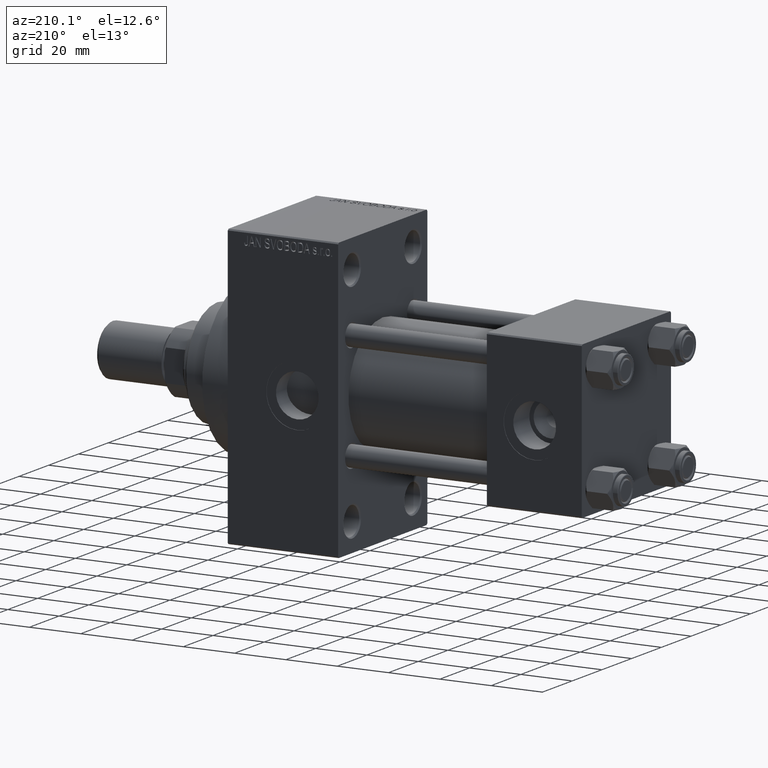
[diagram: clean part render]
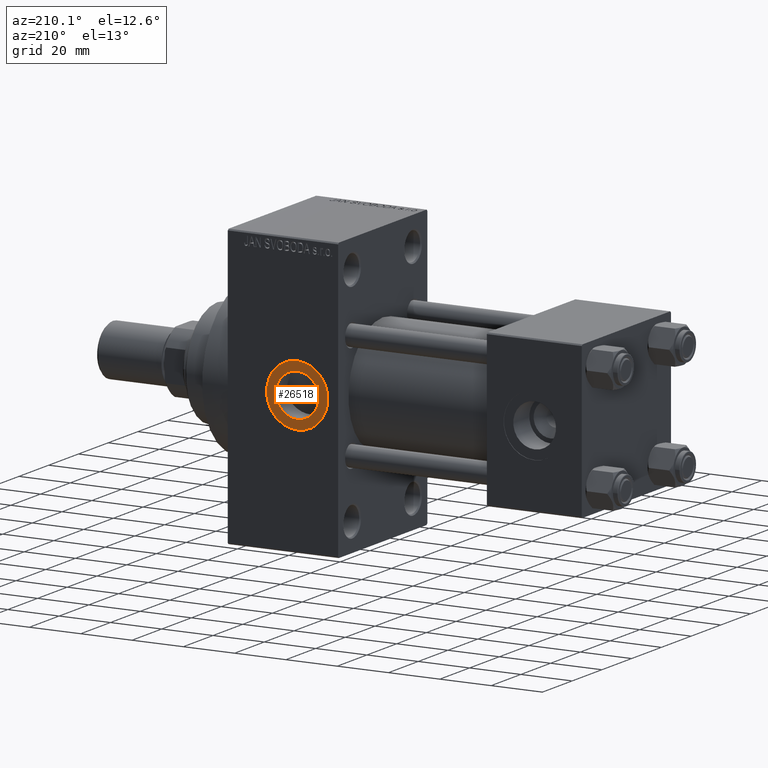
[diagram: same view with one face highlighted and labeled with its STEP entity id]
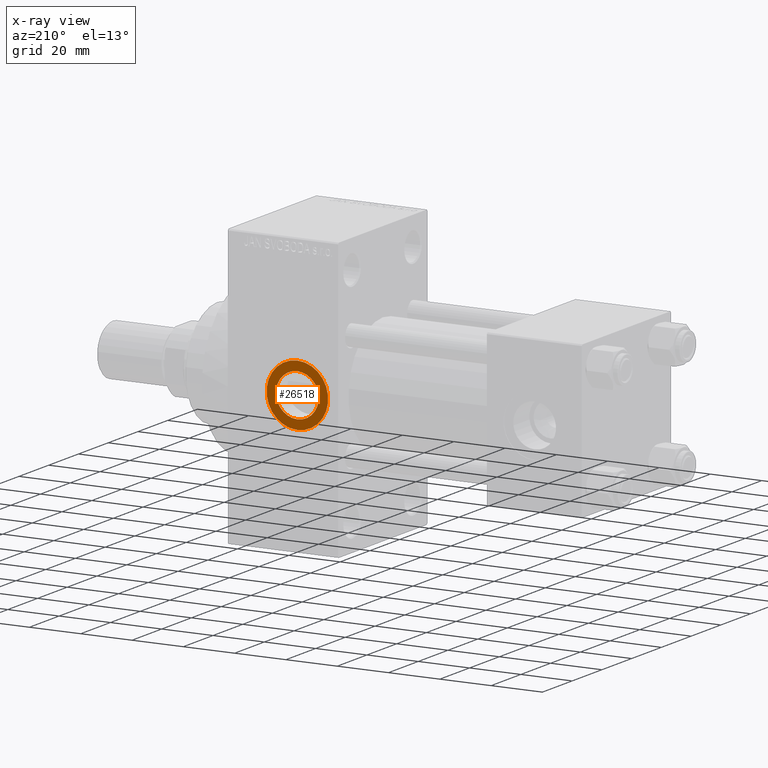
[diagram: x-ray of the same camera — body ghosted, the highlighted face saturated]
A machine part, auxiliary view. The second image highlights one B-rep face of the part: STEP entity #26518.
The next image is the same camera in x-ray: the body ghosted, the highlighted face saturated — about 0% of this face is hidden behind the body in this view.
In plain terms, the highlighted planar face has unit normal (0, 1, 0).
Its self-contained STEP definition (entity closure, byte-faithful):
#518 = DIRECTION ( 'NONE',  ( 0.000000000000000000, 0.000000000000000000, 1.000000000000000000 ) ) ;
#1814 = EDGE_CURVE ( 'NONE', #2013, #30014, #8591, .T. ) ;
#2013 = VERTEX_POINT ( 'NONE', #43425 ) ;
#2873 = DIRECTION ( 'NONE',  ( 0.000000000000000000, 1.000000000000000000, 0.000000000000000000 ) ) ;
#5635 = EDGE_CURVE ( 'NONE', #30014, #2013, #40175, .T. ) ;
#8108 = EDGE_LOOP ( 'NONE', ( #47485, #42424 ) ) ;
#8591 = CIRCLE ( 'NONE', #25557, 11.99999999999998934 ) ;
#8725 = DIRECTION ( 'NONE',  ( 0.000000000000000000, 1.000000000000000000, 0.000000000000000000 ) ) ;
#10217 = CIRCLE ( 'NONE', #42598, 8.329999999999998295 ) ;
#10356 = DIRECTION ( 'NONE',  ( 0.000000000000000000, 0.000000000000000000, 1.000000000000000000 ) ) ;
#10470 = DIRECTION ( 'NONE',  ( 0.000000000000000000, -0.000000000000000000, 1.000000000000000000 ) ) ;
#11381 = DIRECTION ( 'NONE',  ( 0.000000000000000000, 1.000000000000000000, 0.000000000000000000 ) ) ;
#17805 = ORIENTED_EDGE ( 'NONE', *, *, #22985, .F. ) ;
#19093 = CARTESIAN_POINT ( 'NONE',  ( 111.0000000000000000, 29.79999999999999716, 0.000000000000000000 ) ) ;
#21528 = AXIS2_PLACEMENT_3D ( 'NONE', #36296, #36547, #10470 ) ;
#22985 = EDGE_CURVE ( 'NONE', #36398, #25183, #47705, .T. ) ;
#24001 = AXIS2_PLACEMENT_3D ( 'NONE', #24854, #2873, #10356 ) ;
#24854 = CARTESIAN_POINT ( 'NONE',  ( 111.0000000000000000, 29.79999999999999716, 0.000000000000000000 ) ) ;
#25183 = VERTEX_POINT ( 'NONE', #35412 ) ;
#25557 = AXIS2_PLACEMENT_3D ( 'NONE', #19093, #11381, #518 ) ;
#26518 = ADVANCED_FACE ( 'NONE', ( #43054, #35594 ), #43532, .T. ) ;
#26917 = AXIS2_PLACEMENT_3D ( 'NONE', #28151, #28619, #43082 ) ;
#28151 = CARTESIAN_POINT ( 'NONE',  ( 111.0000000000000000, 29.79999999999999716, 0.000000000000000000 ) ) ;
#28619 = DIRECTION ( 'NONE',  ( 0.000000000000000000, 1.000000000000000000, 0.000000000000000000 ) ) ;
#30014 = VERTEX_POINT ( 'NONE', #31950 ) ;
#31950 = CARTESIAN_POINT ( 'NONE',  ( 111.0000000000000000, 29.79999999999999716, 11.99999999999998934 ) ) ;
#34804 = CARTESIAN_POINT ( 'NONE',  ( 111.0000000000000000, 29.79999999999999716, 0.000000000000000000 ) ) ;
#35412 = CARTESIAN_POINT ( 'NONE',  ( 111.0000000000000000, 29.79999999999999716, -8.329999999999998295 ) ) ;
#35594 = FACE_OUTER_BOUND ( 'NONE', #8108, .T. ) ;
#36296 = CARTESIAN_POINT ( 'NONE',  ( 111.0000000000000000, 29.79999999999999716, 0.000000000000000000 ) ) ;
#36398 = VERTEX_POINT ( 'NONE', #46482 ) ;
#36547 = DIRECTION ( 'NONE',  ( 0.000000000000000000, 1.000000000000000000, 0.000000000000000000 ) ) ;
#37231 = ORIENTED_EDGE ( 'NONE', *, *, #38899, .F. ) ;
#38899 = EDGE_CURVE ( 'NONE', #25183, #36398, #10217, .T. ) ;
#39405 = EDGE_LOOP ( 'NONE', ( #17805, #37231 ) ) ;
#40175 = CIRCLE ( 'NONE', #24001, 11.99999999999998934 ) ;
#42424 = ORIENTED_EDGE ( 'NONE', *, *, #1814, .T. ) ;
#42598 = AXIS2_PLACEMENT_3D ( 'NONE', #34804, #8725, #45181 ) ;
#43054 = FACE_BOUND ( 'NONE', #39405, .T. ) ;
#43082 = DIRECTION ( 'NONE',  ( 0.000000000000000000, 0.000000000000000000, 1.000000000000000000 ) ) ;
#43425 = CARTESIAN_POINT ( 'NONE',  ( 111.0000000000000000, 29.79999999999999716, -11.99999999999998934 ) ) ;
#43532 = PLANE ( 'NONE',  #21528 ) ;
#45181 = DIRECTION ( 'NONE',  ( 0.000000000000000000, 0.000000000000000000, 1.000000000000000000 ) ) ;
#46482 = CARTESIAN_POINT ( 'NONE',  ( 111.0000000000000000, 29.79999999999999716, 8.329999999999998295 ) ) ;
#47485 = ORIENTED_EDGE ( 'NONE', *, *, #5635, .T. ) ;
#47705 = CIRCLE ( 'NONE', #26917, 8.329999999999998295 ) ;